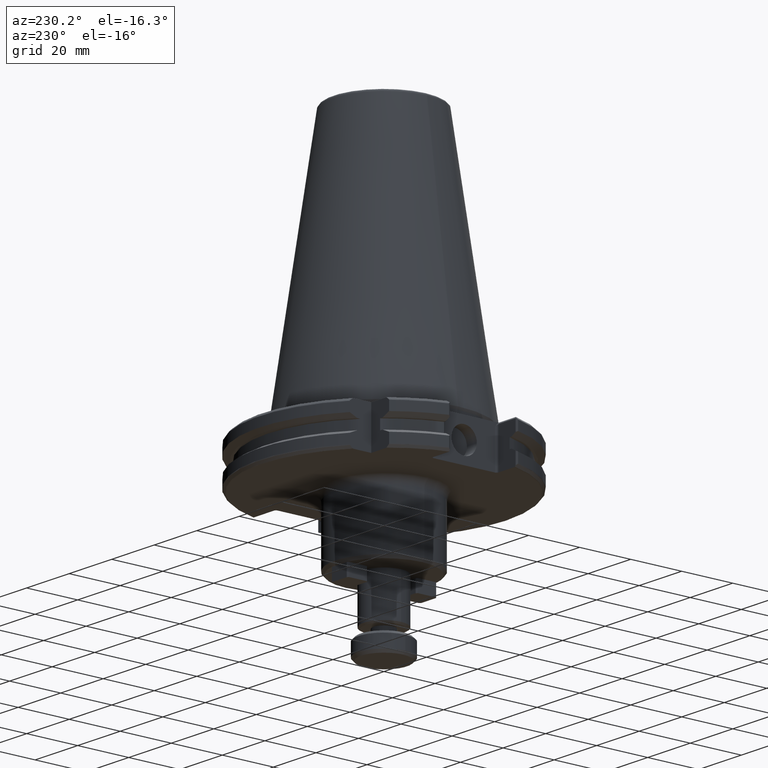
[diagram: clean part render]
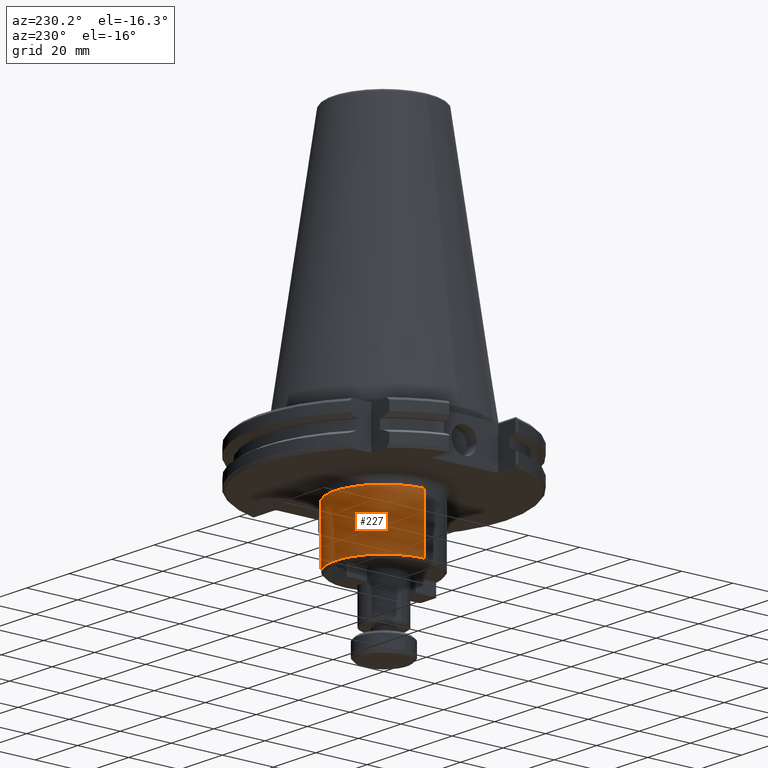
[diagram: same view with one face highlighted and labeled with its STEP entity id]
A machine part, auxiliary view. The second image highlights one B-rep face of the part: STEP entity #227.
In plain terms, the highlighted cylindrical surface (partial cylindrical patch) has radius 19 mm, axis along (-0, -0, 1).
Its self-contained STEP definition (entity closure, byte-faithful):
#227 = ADVANCED_FACE ( 'NONE', ( #492 ), #543, .T. ) ;
#492 = FACE_OUTER_BOUND ( 'NONE', #674, .T. ) ;
#531 = LINE ( 'NONE', #2339, #943 ) ;
#543 = CYLINDRICAL_SURFACE ( 'NONE', #3022, 19.00000000000000000 ) ;
#674 = EDGE_LOOP ( 'NONE', ( #1748, #2461, #1442, #2034 ) ) ;
#943 = VECTOR ( 'NONE', #2619, 1000.000000000000000 ) ;
#1076 = CARTESIAN_POINT ( 'NONE',  ( 0.0000000000000000000, 0.0000000000000000000, -22.10000000000000500 ) ) ;
#1128 = CARTESIAN_POINT ( 'NONE',  ( 19.00000000000000000, 0.0000000000000000000, -22.10000000000000500 ) ) ;
#1130 = CIRCLE ( 'NONE', #2999, 19.00000000000000000 ) ;
#1289 = VERTEX_POINT ( 'NONE', #2106 ) ;
#1319 = DIRECTION ( 'NONE',  ( -0.0000000000000000000, -0.0000000000000000000, 1.000000000000000000 ) ) ;
#1381 = DIRECTION ( 'NONE',  ( -1.000000000000000000, 0.0000000000000000000, 0.0000000000000000000 ) ) ;
#1410 = CARTESIAN_POINT ( 'NONE',  ( 0.0000000000000000000, 0.0000000000000000000, 0.0000000000000000000 ) ) ;
#1442 = ORIENTED_EDGE ( 'NONE', *, *, #3609, .T. ) ;
#1578 = CARTESIAN_POINT ( 'NONE',  ( -19.00000000000000000, 2.326828918379971000E-015, -22.10000000000000500 ) ) ;
#1722 = CARTESIAN_POINT ( 'NONE',  ( 19.00000000000000000, 0.0000000000000000000, 0.0000000000000000000 ) ) ;
#1748 = ORIENTED_EDGE ( 'NONE', *, *, #2066, .T. ) ;
#1890 = VERTEX_POINT ( 'NONE', #1128 ) ;
#1992 = VERTEX_POINT ( 'NONE', #1578 ) ;
#2034 = ORIENTED_EDGE ( 'NONE', *, *, #3720, .F. ) ;
#2066 = EDGE_CURVE ( 'NONE', #2960, #1289, #3627, .T. ) ;
#2102 = LINE ( 'NONE', #1722, #2246 ) ;
#2106 = CARTESIAN_POINT ( 'NONE',  ( -19.00000000000000000, 2.326828918379971000E-015, -44.00000000000000000 ) ) ;
#2203 = AXIS2_PLACEMENT_3D ( 'NONE', #3131, #1319, #3417 ) ;
#2246 = VECTOR ( 'NONE', #3828, 1000.000000000000000 ) ;
#2339 = CARTESIAN_POINT ( 'NONE',  ( -19.00000000000000000, 2.326828918379971000E-015, 0.0000000000000000000 ) ) ;
#2461 = ORIENTED_EDGE ( 'NONE', *, *, #3679, .T. ) ;
#2619 = DIRECTION ( 'NONE',  ( -0.0000000000000000000, -0.0000000000000000000, 1.000000000000000000 ) ) ;
#2741 = DIRECTION ( 'NONE',  ( 1.000000000000000000, 0.0000000000000000000, 0.0000000000000000000 ) ) ;
#2960 = VERTEX_POINT ( 'NONE', #3341 ) ;
#2999 = AXIS2_PLACEMENT_3D ( 'NONE', #1076, #3184, #1381 ) ;
#3016 = DIRECTION ( 'NONE',  ( -0.0000000000000000000, -0.0000000000000000000, 1.000000000000000000 ) ) ;
#3022 = AXIS2_PLACEMENT_3D ( 'NONE', #1410, #3016, #2741 ) ;
#3131 = CARTESIAN_POINT ( 'NONE',  ( 0.0000000000000000000, 0.0000000000000000000, -44.00000000000000000 ) ) ;
#3184 = DIRECTION ( 'NONE',  ( 0.0000000000000000000, 0.0000000000000000000, -1.000000000000000000 ) ) ;
#3341 = CARTESIAN_POINT ( 'NONE',  ( 19.00000000000000000, 0.0000000000000000000, -44.00000000000000000 ) ) ;
#3417 = DIRECTION ( 'NONE',  ( 1.000000000000000000, 0.0000000000000000000, 0.0000000000000000000 ) ) ;
#3609 = EDGE_CURVE ( 'NONE', #1992, #1890, #1130, .T. ) ;
#3627 = CIRCLE ( 'NONE', #2203, 19.00000000000000000 ) ;
#3679 = EDGE_CURVE ( 'NONE', #1289, #1992, #531, .T. ) ;
#3720 = EDGE_CURVE ( 'NONE', #2960, #1890, #2102, .T. ) ;
#3828 = DIRECTION ( 'NONE',  ( -0.0000000000000000000, -0.0000000000000000000, 1.000000000000000000 ) ) ;